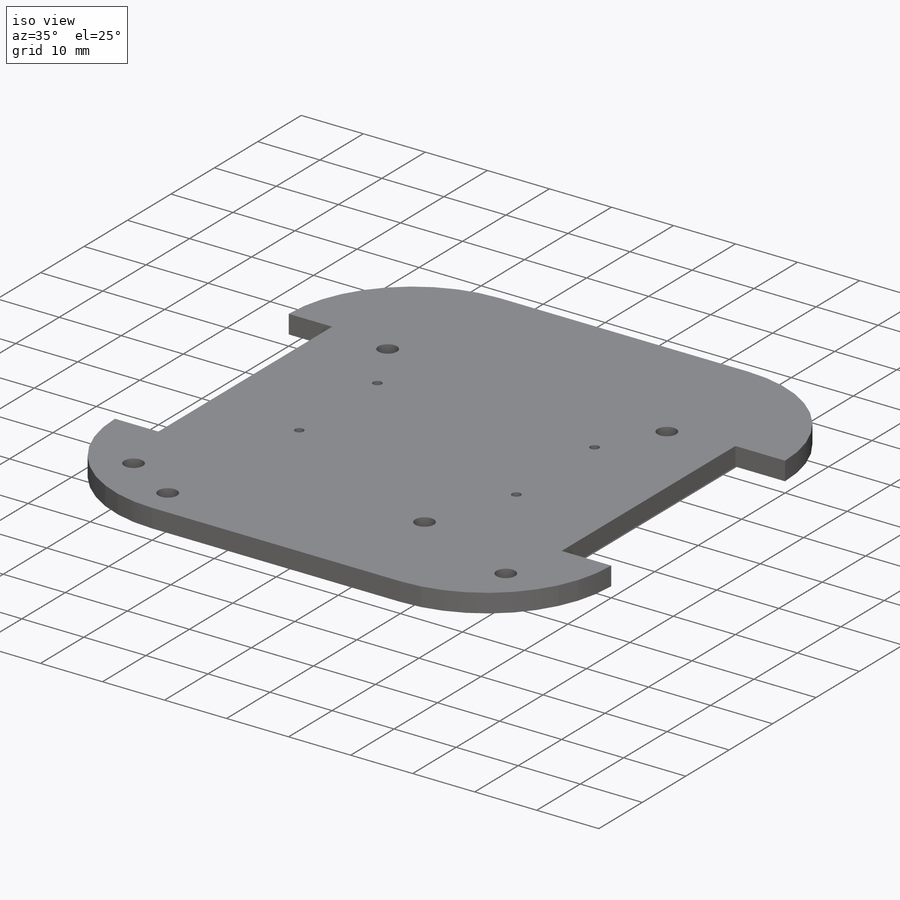
[diagram: iso view]
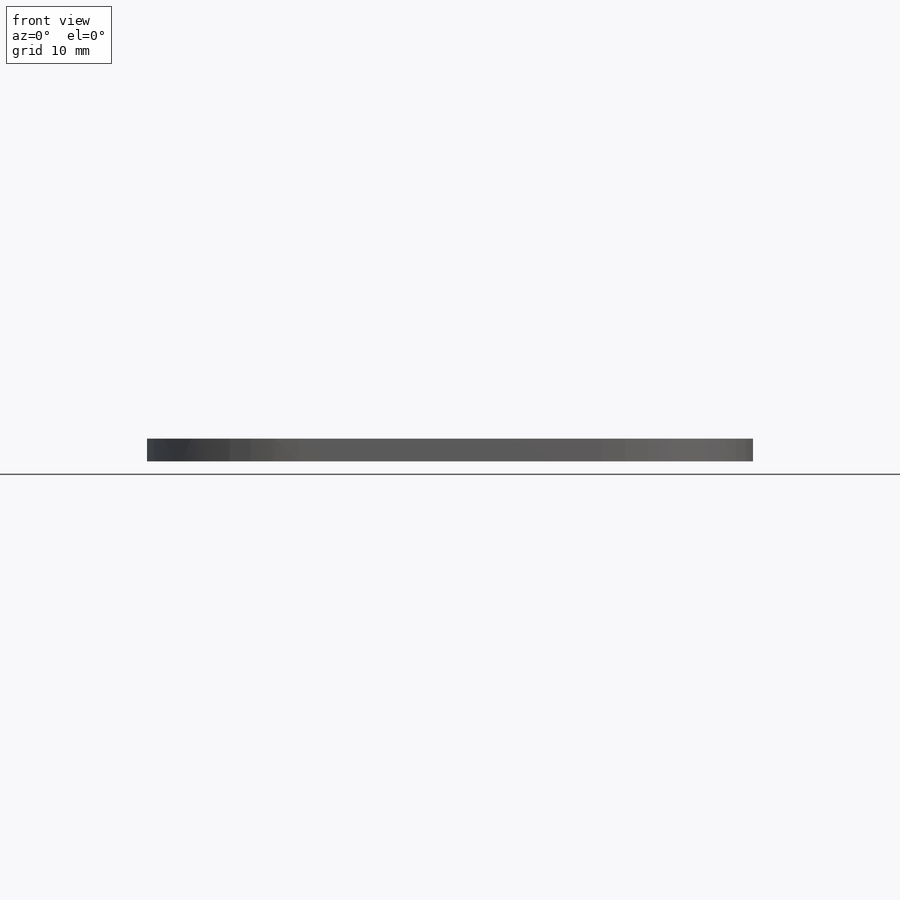
[diagram: front view]
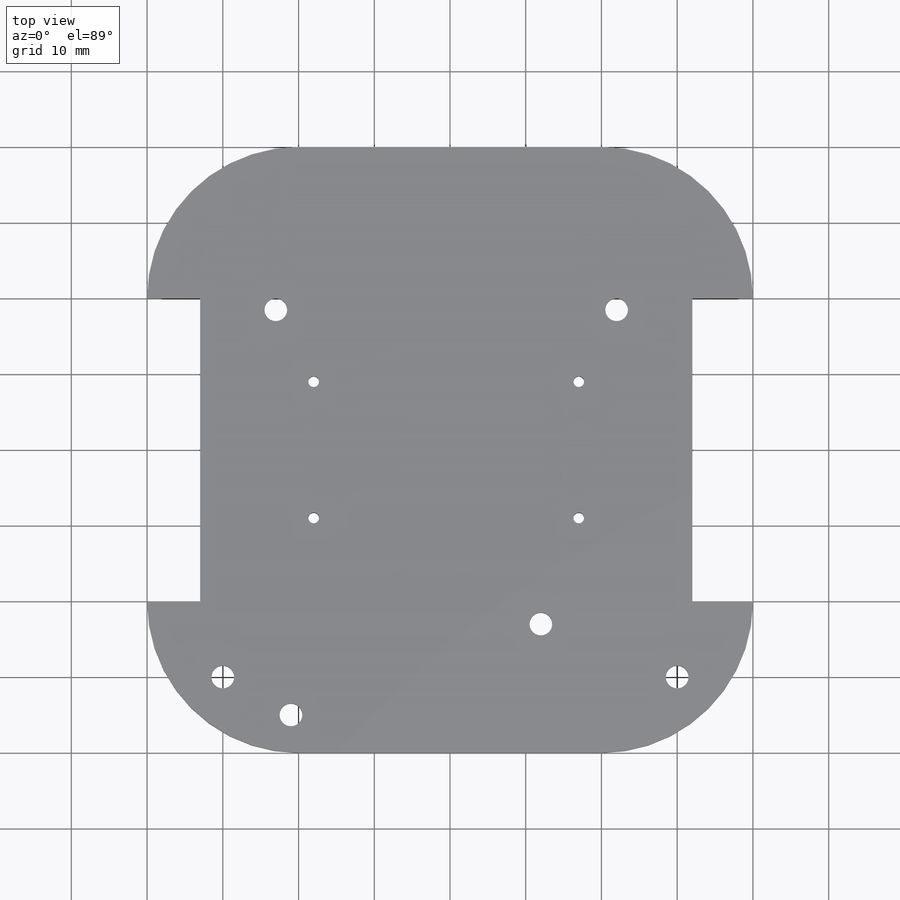
[diagram: top view]
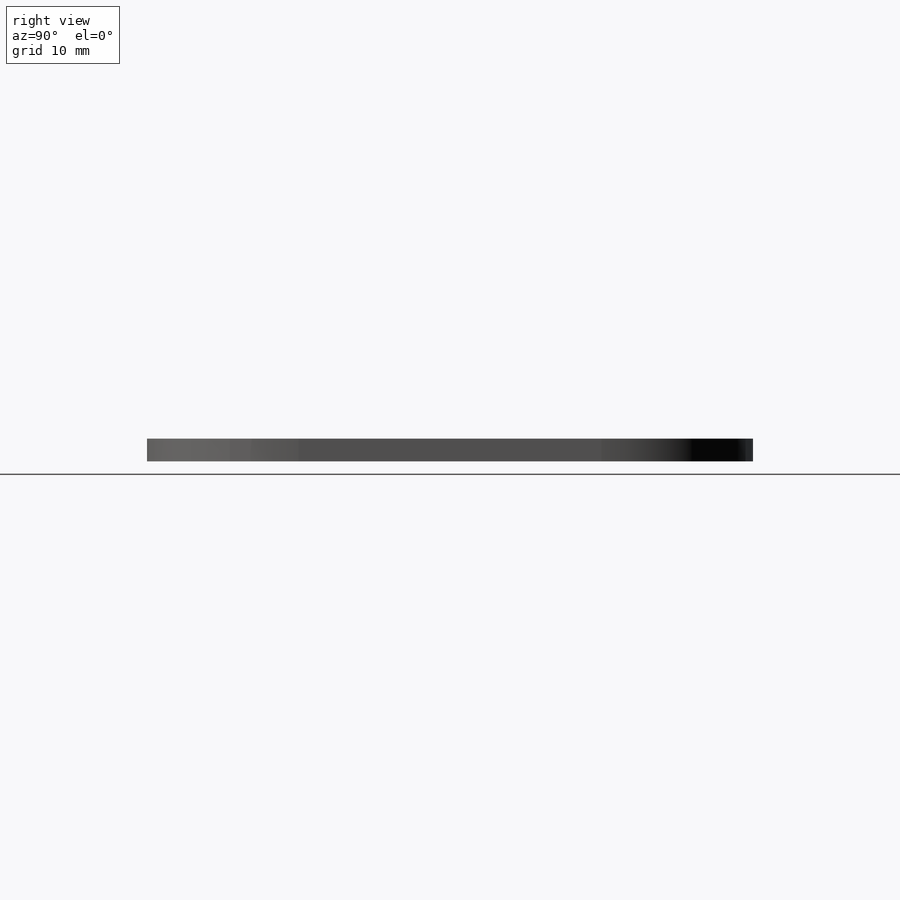
[diagram: right view]
SOLIDWORKS PART (.sldprt)
format: sldprt  version: not decoded by parser v0  size: 499,712 bytes
history: native  units: mm
features: sketch x6, cut_extrude x5, fillet x4, material x1, extrude x1 (+13 scaffold rows collapsed)
feature tree (30):
  scaffold x13  (default folders/planes/origin — collapsed)
  material  "Pine"
  sketch  "Sketch3"  dims[D1=80.0mm D2=80.0mm]
  extrude  "Boss-Extrude1"  Depth=3mm
  sketch  "Sketch4"  dims[D1=7.0mm D2=40.0mm D3=0.0mm D4=20.0mm D5=8.0mm D6=40.0mm D7=20.0mm D8=0.0mm]
  cut_extrude  "Cut-Extrude1"  Depth=3mm
  fillet  "Fillet3"  Radius=20mm
  fillet  "Fillet4"  Radius=20mm
  fillet  "Fillet5"  Radius=20mm
  fillet  "Fillet6"  Radius=20mm
  sketch  "Sketch6"  dims[c1.D1=~1.999403mm c1.D3=~2.269202mm c2.D1=10.0mm c2.D2=1.5mm c2.D3=1.5mm c2.D4=10.0mm]
  cut_extrude  "Cut-Extrude2"  Depth=3mm
  sketch  "Sketch9"  dims[c1.D1=~1.513087mm c1.D3=~2.156395mm c2.D1=10.0mm c2.D2=2.0mm c2.D3=10.0mm c2.D4=3.0mm]
  cut_extrude  "Cut-Extrude3"  Depth=3mm
  sketch  "Sketch10"  dims[c1.D1=~1.570786mm c1.D3=~1.676924mm c2.D1=5.0mm c2.D2=12.0mm c2.D3=33.0mm c2.D4=17.0mm c3.D3=33.0mm]
  cut_extrude  "Cut-Extrude4"  Depth=3mm
  sketch  "Sketch11"  dims[c1.D1=~2.289794mm c1.D3=~0.810614mm c1.D5=~1.334613mm c1.D7=~2.328427mm c2.D1=15.0mm c2.D2=9.0mm c2.D3=15.0mm c2.D4=9.0mm c2.D5=9.0mm c2.D6=15.0mm c2.D7=9.0mm c2.D8=15.0mm c3.D2=18.0mm]
  cut_extrude  "Cut-Extrude5"  Depth=3mm
decode coverage: 16 of 16 modeling features carry decoded parameters
note: ~ marks probable driven/reference dimensions
note: suppression state not decoded; provenance and decode notes live in map.json
